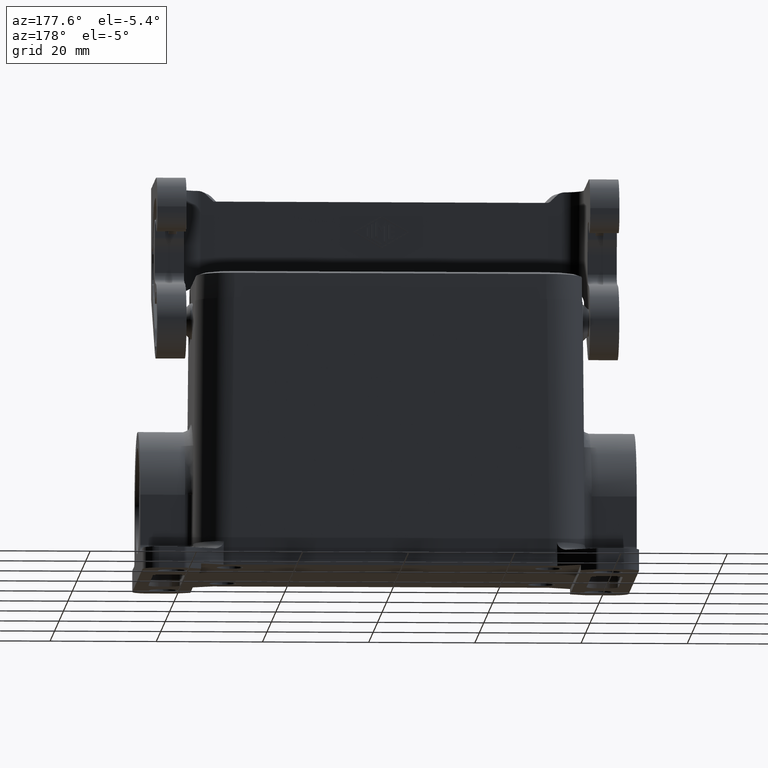
[diagram: clean part render]
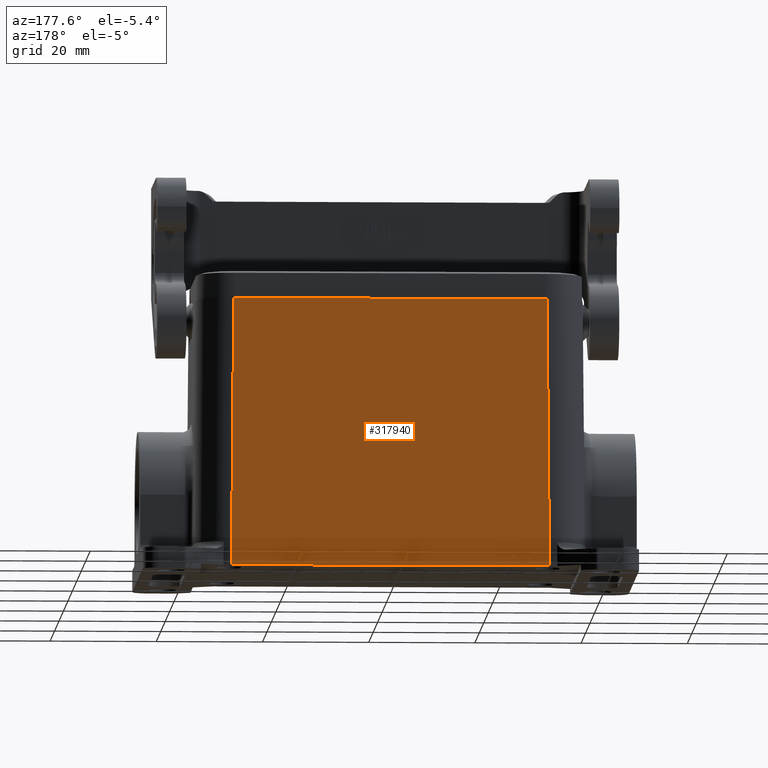
[diagram: same view with one face highlighted and labeled with its STEP entity id]
A machine part, auxiliary view. The second image highlights one B-rep face of the part: STEP entity #317940.
In plain terms, the highlighted planar face has unit normal (0, 1, 0.0087).
Its self-contained STEP definition (entity closure, byte-faithful):
#130=CARTESIAN_POINT('',(20.32493,69.4075885385508,1.38777878078145E-17)
);
#140=VERTEX_POINT('',#130);
#1560=CARTESIAN_POINT('',(20.32493,10.4070554614492,0.));
#1570=VERTEX_POINT('',#1560);
#1600=CARTESIAN_POINT('',(20.32493,0.,0.));
#1610=DIRECTION('',(0.,1.,0.));
#1620=VECTOR('',#1610,1.);
#1630=LINE('',#1600,#1620);
#1640=EDGE_CURVE('',#1570,#140,#1630,.T.);
#317640=CARTESIAN_POINT('',(20.32493,76.407322,0.));
#317650=DIRECTION('',(-0.999961923064171,0.,0.00872653549837394));
#317660=DIRECTION('',(0.,1.,0.));
#317670=AXIS2_PLACEMENT_3D('',#317640,#317650,#317660);
#317680=PLANE('',#317670);
#317690=ORIENTED_EDGE('',*,*,#1640,.T.);
#317700=CARTESIAN_POINT('',(20.325463087251,10.4075885487002,
0.0610857484886176));
#317710=DIRECTION('',(-0.00872620324394422,-0.00872620324394422,
-0.99992385047757));
#317720=VECTOR('',#317710,1.);
#317730=LINE('',#317700,#317720);
#317740=CARTESIAN_POINT('',(19.8842231765667,9.96634863801588,-50.5));
#317750=VERTEX_POINT('',#317740);
#317760=EDGE_CURVE('',#1570,#317750,#317730,.T.);
#317770=ORIENTED_EDGE('',*,*,#317760,.F.);
#317780=CARTESIAN_POINT('',(19.8842231765667,0.,-50.5));
#317790=DIRECTION('',(0.,1.,0.));
#317800=VECTOR('',#317790,1.);
#317810=LINE('',#317780,#317800);
#317820=CARTESIAN_POINT('',(19.8842231765667,69.8482953619841,-50.5));
#317830=VERTEX_POINT('',#317820);
#317840=EDGE_CURVE('',#317750,#317830,#317810,.T.);
#317850=ORIENTED_EDGE('',*,*,#317840,.F.);
#317860=CARTESIAN_POINT('',(20.325463087251,69.4070554512998,
0.0610857484886176));
#317870=DIRECTION('',(0.00872620324394422,-0.00872620324394422,
0.99992385047757));
#317880=VECTOR('',#317870,1.);
#317890=LINE('',#317860,#317880);
#317900=EDGE_CURVE('',#317830,#140,#317890,.T.);
#317910=ORIENTED_EDGE('',*,*,#317900,.F.);
#317920=EDGE_LOOP('',(#317910,#317850,#317770,#317690));
#317930=FACE_OUTER_BOUND('',#317920,.T.);
#317940=ADVANCED_FACE('',(#317930),#317680,.T.);